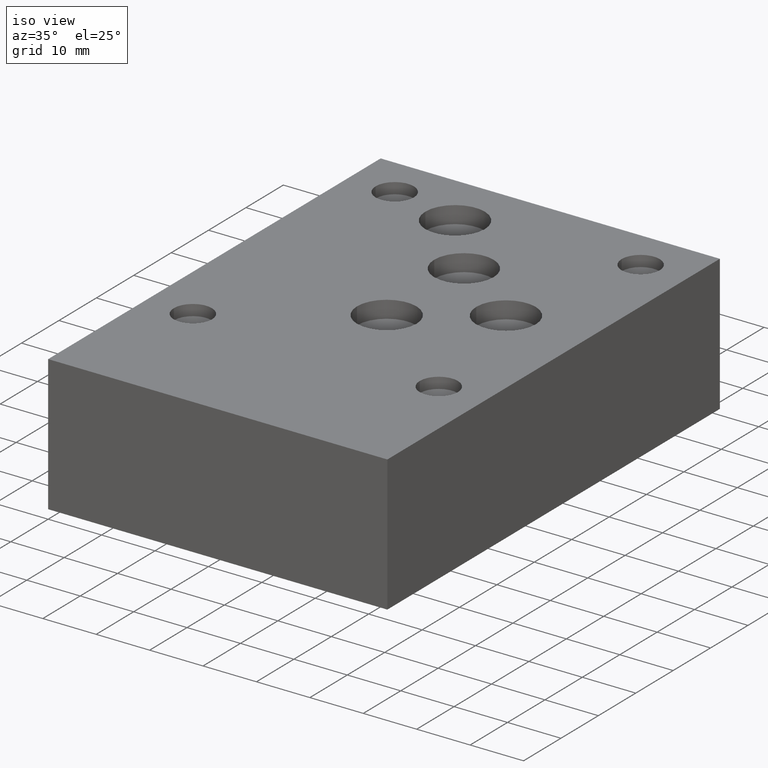
[diagram: clean part render]
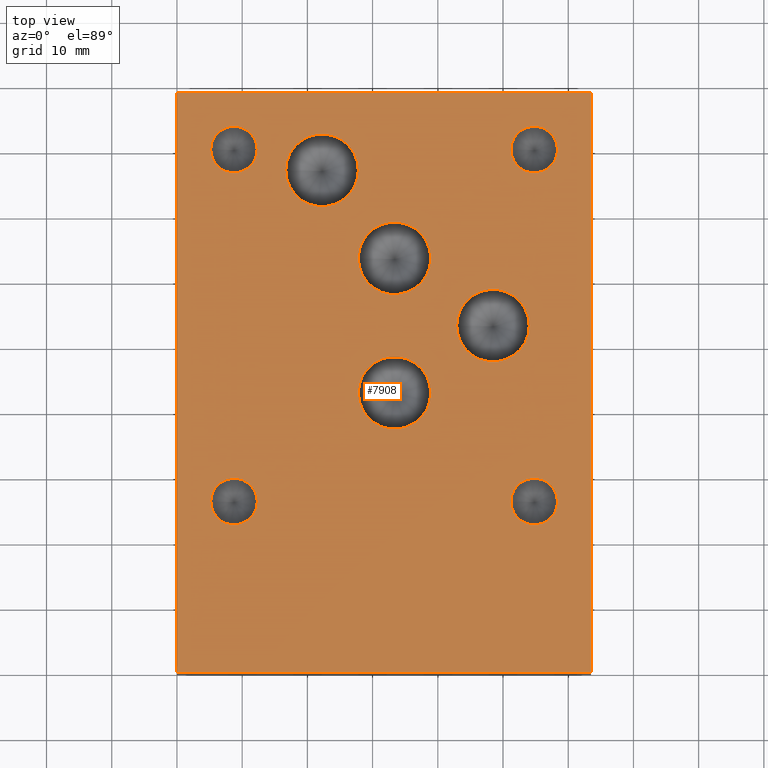
[diagram: tour spotlight — one face highlighted and labeled with its STEP entity id]
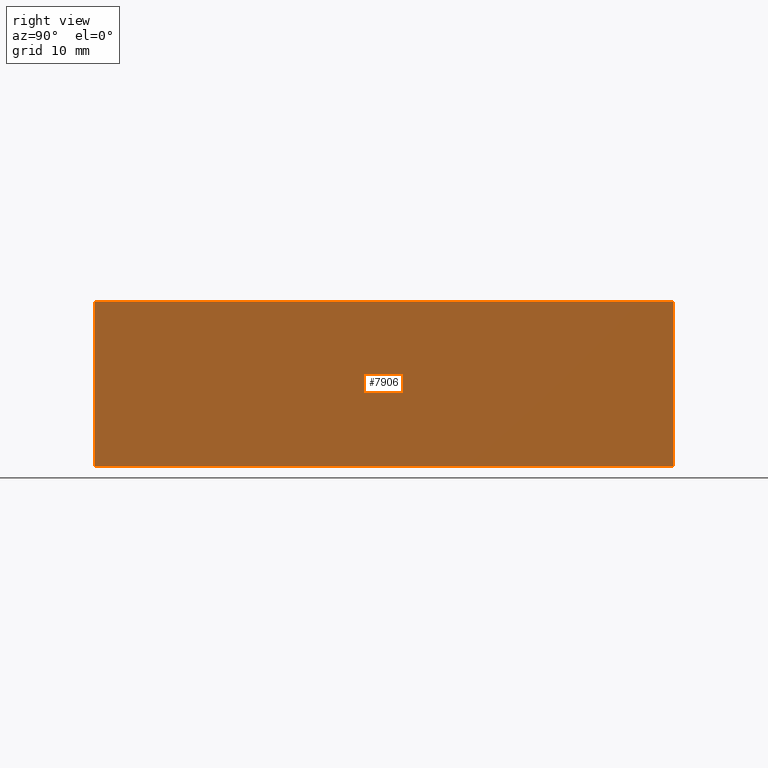
[diagram: tour spotlight — one face highlighted and labeled with its STEP entity id]
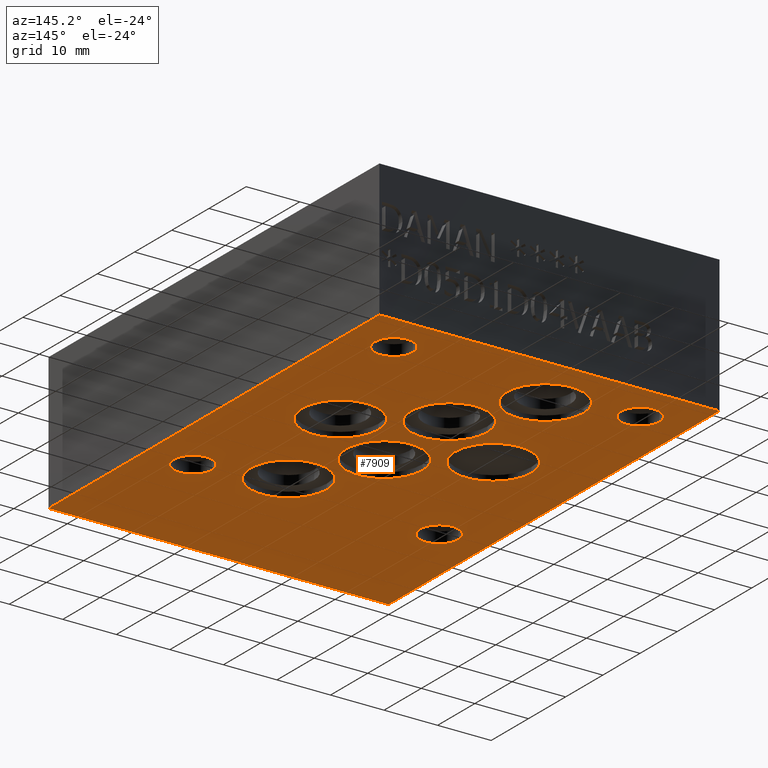
[diagram: tour spotlight — one face highlighted and labeled with its STEP entity id]
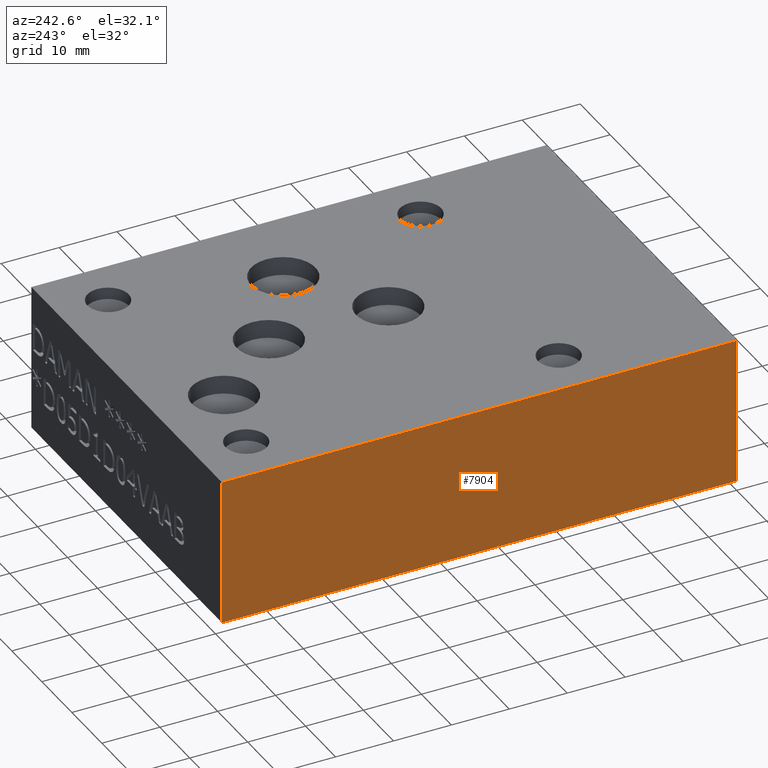
[diagram: tour spotlight — one face highlighted and labeled with its STEP entity id]
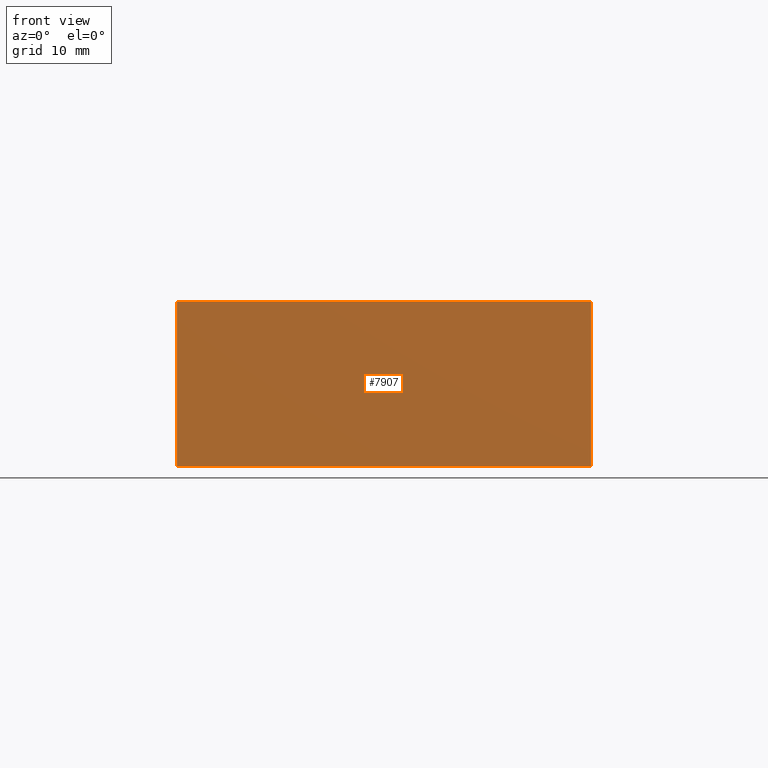
[diagram: tour spotlight — one face highlighted and labeled with its STEP entity id]
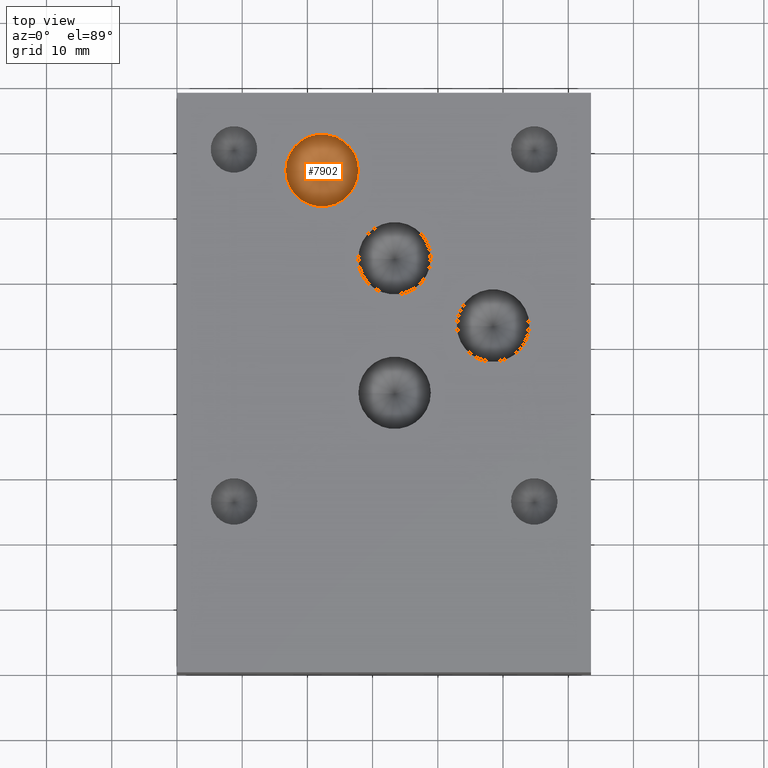
[diagram: tour spotlight — one face highlighted and labeled with its STEP entity id]
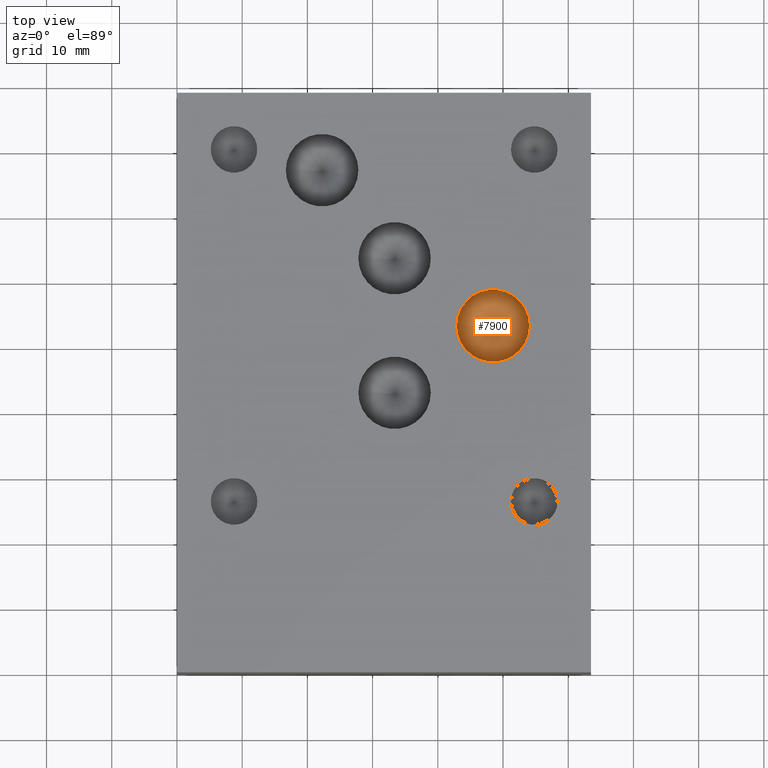
[diagram: tour spotlight — one face highlighted and labeled with its STEP entity id]
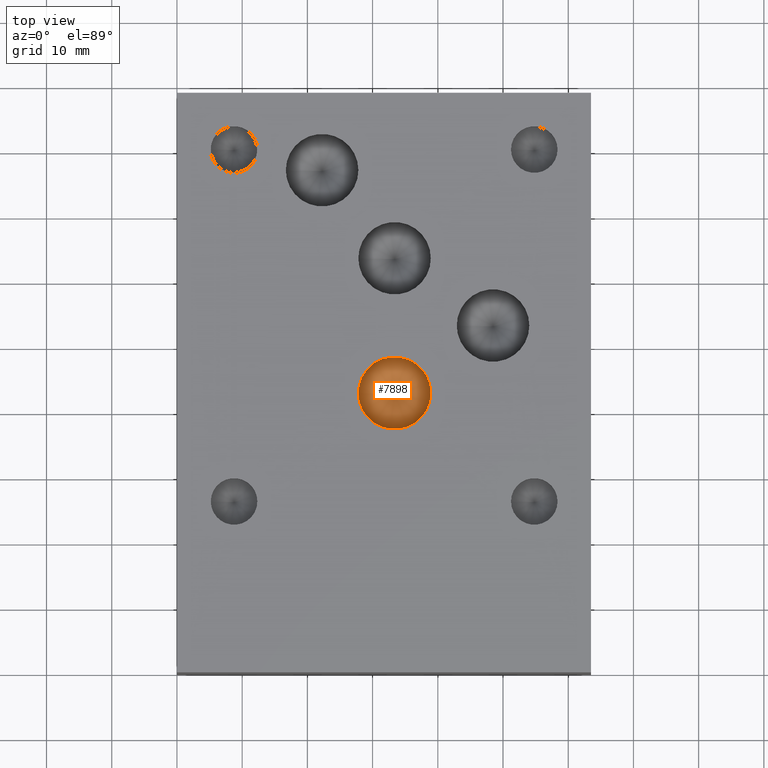
[diagram: tour spotlight — one face highlighted and labeled with its STEP entity id]
A machine part: a face-by-face anatomy tour. The part has 398 B-rep faces; the first image is the clean iso view, then the 8 largest visible faces are spotlighted one at a time (largest first), each with its STEP entity span.

Face 1 — top view, entity #7908. In plain terms, the highlighted planar face has unit normal (0, 0, 1).
Definition (entity closure, byte-faithful):
#88=CIRCLE('',#8275,3.5687);
#89=CIRCLE('',#8276,3.5687);
#92=CIRCLE('',#8281,3.5687);
#93=CIRCLE('',#8282,3.5687);
#96=CIRCLE('',#8287,3.5687);
#97=CIRCLE('',#8288,3.5687);
#100=CIRCLE('',#8293,3.5687);
#101=CIRCLE('',#8294,3.5687);
#104=CIRCLE('',#8299,5.55625);
#105=CIRCLE('',#8300,5.55625);
#108=CIRCLE('',#8305,5.55625);
#109=CIRCLE('',#8306,5.55625);
#112=CIRCLE('',#8311,5.5626);
#113=CIRCLE('',#8312,5.5626);
#116=CIRCLE('',#8317,5.5626);
#117=CIRCLE('',#8318,5.5626);
#432=FACE_BOUND('',#1284,.T.);
#433=FACE_BOUND('',#1285,.T.);
#434=FACE_BOUND('',#1286,.T.);
#435=FACE_BOUND('',#1287,.T.);
#436=FACE_BOUND('',#1288,.T.);
#437=FACE_BOUND('',#1289,.T.);
#438=FACE_BOUND('',#1290,.T.);
#439=FACE_BOUND('',#1291,.T.);
#846=FACE_OUTER_BOUND('',#1283,.T.);
#1283=EDGE_LOOP('',(#6860,#6861,#6862,#6863));
#1284=EDGE_LOOP('',(#6864,#6865));
#1285=EDGE_LOOP('',(#6866,#6867));
#1286=EDGE_LOOP('',(#6868,#6869));
#1287=EDGE_LOOP('',(#6870,#6871));
#1288=EDGE_LOOP('',(#6872,#6873));
#1289=EDGE_LOOP('',(#6874,#6875));
#1290=EDGE_LOOP('',(#6876,#6877));
#1291=EDGE_LOOP('',(#6878,#6879));
#1696=LINE('',#12043,#2516);
#2117=LINE('',#13238,#2937);
#2119=LINE('',#13244,#2939);
#2122=LINE('',#13248,#2942);
#2516=VECTOR('',#8956,10.);
#2937=VECTOR('',#9933,10.);
#2939=VECTOR('',#9939,10.);
#2942=VECTOR('',#9944,10.);
#3307=VERTEX_POINT('',#12040);
#3308=VERTEX_POINT('',#12042);
#3638=VERTEX_POINT('',#13137);
#3639=VERTEX_POINT('',#13138);
#3643=VERTEX_POINT('',#13150);
#3644=VERTEX_POINT('',#13151);
#3648=VERTEX_POINT('',#13163);
#3649=VERTEX_POINT('',#13164);
#3653=VERTEX_POINT('',#13176);
#3654=VERTEX_POINT('',#13177);
#3658=VERTEX_POINT('',#13189);
#3659=VERTEX_POINT('',#13190);
#3663=VERTEX_POINT('',#13202);
#3664=VERTEX_POINT('',#13203);
#3668=VERTEX_POINT('',#13215);
#3669=VERTEX_POINT('',#13216);
#3673=VERTEX_POINT('',#13228);
#3674=VERTEX_POINT('',#13229);
#3676=VERTEX_POINT('',#13236);
#3678=VERTEX_POINT('',#13243);
#4224=EDGE_CURVE('',#3308,#3307,#1696,.T.);
#4701=EDGE_CURVE('',#3638,#3639,#88,.T.);
#4702=EDGE_CURVE('',#3639,#3638,#89,.T.);
#4707=EDGE_CURVE('',#3643,#3644,#92,.T.);
#4708=EDGE_CURVE('',#3644,#3643,#93,.T.);
#4713=EDGE_CURVE('',#3648,#3649,#96,.T.);
#4714=EDGE_CURVE('',#3649,#3648,#97,.T.);
#4719=EDGE_CURVE('',#3653,#3654,#100,.T.);
#4720=EDGE_CURVE('',#3654,#3653,#101,.T.);
#4725=EDGE_CURVE('',#3658,#3659,#104,.T.);
#4726=EDGE_CURVE('',#3659,#3658,#105,.T.);
#4731=EDGE_CURVE('',#3663,#3664,#108,.T.);
#4732=EDGE_CURVE('',#3664,#3663,#109,.T.);
#4737=EDGE_CURVE('',#3668,#3669,#112,.T.);
#4738=EDGE_CURVE('',#3669,#3668,#113,.T.);
#4743=EDGE_CURVE('',#3673,#3674,#116,.T.);
#4744=EDGE_CURVE('',#3674,#3673,#117,.T.);
#4748=EDGE_CURVE('',#3307,#3676,#2117,.T.);
#4750=EDGE_CURVE('',#3678,#3308,#2119,.T.);
#4753=EDGE_CURVE('',#3676,#3678,#2122,.T.);
#6860=ORIENTED_EDGE('',*,*,#4753,.T.);
#6861=ORIENTED_EDGE('',*,*,#4750,.T.);
#6862=ORIENTED_EDGE('',*,*,#4224,.T.);
#6863=ORIENTED_EDGE('',*,*,#4748,.T.);
#6864=ORIENTED_EDGE('',*,*,#4701,.T.);
#6865=ORIENTED_EDGE('',*,*,#4702,.T.);
#6866=ORIENTED_EDGE('',*,*,#4707,.T.);
#6867=ORIENTED_EDGE('',*,*,#4708,.T.);
#6868=ORIENTED_EDGE('',*,*,#4713,.T.);
#6869=ORIENTED_EDGE('',*,*,#4714,.T.);
#6870=ORIENTED_EDGE('',*,*,#4719,.T.);
#6871=ORIENTED_EDGE('',*,*,#4720,.T.);
#6872=ORIENTED_EDGE('',*,*,#4725,.T.);
#6873=ORIENTED_EDGE('',*,*,#4726,.T.);
#6874=ORIENTED_EDGE('',*,*,#4731,.T.);
#6875=ORIENTED_EDGE('',*,*,#4732,.T.);
#6876=ORIENTED_EDGE('',*,*,#4737,.T.);
#6877=ORIENTED_EDGE('',*,*,#4738,.T.);
#6878=ORIENTED_EDGE('',*,*,#4743,.T.);
#6879=ORIENTED_EDGE('',*,*,#4744,.T.);
#7176=PLANE('',#8323);
#7908=ADVANCED_FACE('',(#846,#432,#433,#434,#435,#436,#437,#438,#439),#7176,
 .T.);
#8275=AXIS2_PLACEMENT_3D('',#13139,#9826,#9827);
#8276=AXIS2_PLACEMENT_3D('',#13140,#9828,#9829);
#8281=AXIS2_PLACEMENT_3D('',#13152,#9840,#9841);
#8282=AXIS2_PLACEMENT_3D('',#13153,#9842,#9843);
#8287=AXIS2_PLACEMENT_3D('',#13165,#9854,#9855);
#8288=AXIS2_PLACEMENT_3D('',#13166,#9856,#9857);
#8293=AXIS2_PLACEMENT_3D('',#13178,#9868,#9869);
#8294=AXIS2_PLACEMENT_3D('',#13179,#9870,#9871);
#8299=AXIS2_PLACEMENT_3D('',#13191,#9882,#9883);
#8300=AXIS2_PLACEMENT_3D('',#13192,#9884,#9885);
#8305=AXIS2_PLACEMENT_3D('',#13204,#9896,#9897);
#8306=AXIS2_PLACEMENT_3D('',#13205,#9898,#9899);
#8311=AXIS2_PLACEMENT_3D('',#13217,#9910,#9911);
#8312=AXIS2_PLACEMENT_3D('',#13218,#9912,#9913);
#8317=AXIS2_PLACEMENT_3D('',#13230,#9924,#9925);
#8318=AXIS2_PLACEMENT_3D('',#13231,#9926,#9927);
#8323=AXIS2_PLACEMENT_3D('',#13249,#9945,#9946);
#8956=DIRECTION('',(-1.,0.,0.));
#9826=DIRECTION('center_axis',(0.,0.,-1.));
#9827=DIRECTION('ref_axis',(1.,0.,0.));
#9828=DIRECTION('center_axis',(0.,0.,-1.));
#9829=DIRECTION('ref_axis',(1.,0.,0.));
#9840=DIRECTION('center_axis',(0.,0.,-1.));
#9841=DIRECTION('ref_axis',(1.,0.,0.));
#9842=DIRECTION('center_axis',(0.,0.,-1.));
#9843=DIRECTION('ref_axis',(1.,0.,0.));
#9854=DIRECTION('center_axis',(0.,0.,-1.));
#9855=DIRECTION('ref_axis',(1.,0.,0.));
#9856=DIRECTION('center_axis',(0.,0.,-1.));
#9857=DIRECTION('ref_axis',(1.,0.,0.));
#9868=DIRECTION('center_axis',(0.,0.,-1.));
#9869=DIRECTION('ref_axis',(1.,0.,0.));
#9870=DIRECTION('center_axis',(0.,0.,-1.));
#9871=DIRECTION('ref_axis',(1.,0.,0.));
#9882=DIRECTION('center_axis',(0.,0.,-1.));
#9883=DIRECTION('ref_axis',(1.,0.,0.));
#9884=DIRECTION('center_axis',(0.,0.,-1.));
#9885=DIRECTION('ref_axis',(1.,0.,0.));
#9896=DIRECTION('center_axis',(0.,0.,-1.));
#9897=DIRECTION('ref_axis',(1.,0.,0.));
#9898=DIRECTION('center_axis',(0.,0.,-1.));
#9899=DIRECTION('ref_axis',(1.,0.,0.));
#9910=DIRECTION('center_axis',(0.,0.,-1.));
#9911=DIRECTION('ref_axis',(1.,0.,0.));
#9912=DIRECTION('center_axis',(0.,0.,-1.));
#9913=DIRECTION('ref_axis',(1.,0.,0.));
#9924=DIRECTION('center_axis',(0.,0.,-1.));
#9925=DIRECTION('ref_axis',(1.,0.,0.));
#9926=DIRECTION('center_axis',(0.,0.,-1.));
#9927=DIRECTION('ref_axis',(1.,0.,0.));
#9933=DIRECTION('',(0.,-1.,0.));
#9939=DIRECTION('',(0.,1.,0.));
#9944=DIRECTION('',(1.,0.,0.));
#9945=DIRECTION('center_axis',(0.,0.,1.));
#9946=DIRECTION('ref_axis',(1.,0.,0.));
#12040=CARTESIAN_POINT('',(0.,88.9,25.4));
#12042=CARTESIAN_POINT('',(63.5,88.9,25.4));
#12043=CARTESIAN_POINT('',(63.5,88.9,25.4));
#13137=CARTESIAN_POINT('',(12.3063,80.1878,25.4));
#13138=CARTESIAN_POINT('',(5.1689,80.1878,25.4));
#13139=CARTESIAN_POINT('Origin',(8.7376,80.1878,25.4));
#13140=CARTESIAN_POINT('Origin',(8.7376,80.1878,25.4));
#13150=CARTESIAN_POINT('',(12.319,26.2001,25.4));
#13151=CARTESIAN_POINT('',(5.1816,26.2001,25.4));
#13152=CARTESIAN_POINT('Origin',(8.7503,26.2001,25.4));
#13153=CARTESIAN_POINT('Origin',(8.7503,26.2001,25.4));
#13163=CARTESIAN_POINT('',(58.3565,26.2001,25.4));
#13164=CARTESIAN_POINT('',(51.2191,26.2001,25.4));
#13165=CARTESIAN_POINT('Origin',(54.7878,26.2001,25.4));
#13166=CARTESIAN_POINT('Origin',(54.7878,26.2001,25.4));
#13176=CARTESIAN_POINT('',(58.3565,80.1751,25.4));
#13177=CARTESIAN_POINT('',(51.2191,80.1751,25.4));
#13178=CARTESIAN_POINT('Origin',(54.7878,80.1751,25.4));
#13179=CARTESIAN_POINT('Origin',(54.7878,80.1751,25.4));
#13189=CARTESIAN_POINT('',(38.91915,63.50508,25.4));
#13190=CARTESIAN_POINT('',(27.80665,63.50508,25.4));
#13191=CARTESIAN_POINT('Origin',(33.3629,63.50508,25.4));
#13192=CARTESIAN_POINT('Origin',(33.3629,63.50508,25.4));
#13202=CARTESIAN_POINT('',(38.92423,42.87012,25.4));
#13203=CARTESIAN_POINT('',(27.81173,42.87012,25.4));
#13204=CARTESIAN_POINT('Origin',(33.36798,42.87012,25.4));
#13205=CARTESIAN_POINT('Origin',(33.36798,42.87012,25.4));
#13215=CARTESIAN_POINT('',(54.0258,53.1876,25.4));
#13216=CARTESIAN_POINT('',(42.9006,53.1876,25.4));
#13217=CARTESIAN_POINT('Origin',(48.4632,53.1876,25.4));
#13218=CARTESIAN_POINT('Origin',(48.4632,53.1876,25.4));
#13228=CARTESIAN_POINT('',(27.813,77.0128,25.4));
#13229=CARTESIAN_POINT('',(16.6878,77.0128,25.4));
#13230=CARTESIAN_POINT('Origin',(22.2504,77.0128,25.4));
#13231=CARTESIAN_POINT('Origin',(22.2504,77.0128,25.4));
#13236=CARTESIAN_POINT('',(0.,0.,25.4));
#13238=CARTESIAN_POINT('',(0.,88.9,25.4));
#13243=CARTESIAN_POINT('',(63.5,0.,25.4));
#13244=CARTESIAN_POINT('',(63.5,0.,25.4));
#13248=CARTESIAN_POINT('',(0.,0.,25.4));
#13249=CARTESIAN_POINT('Origin',(31.75,44.45,25.4));

Face 2 — right view, entity #7906. In plain terms, the highlighted planar face has unit normal (1, 0, 0).
Definition (entity closure, byte-faithful):
#844=FACE_OUTER_BOUND('',#1281,.T.);
#1281=EDGE_LOOP('',(#6852,#6853,#6854,#6855));
#1697=LINE('',#12044,#2517);
#2118=LINE('',#13242,#2938);
#2119=LINE('',#13244,#2939);
#2120=LINE('',#13245,#2940);
#2517=VECTOR('',#8957,10.);
#2938=VECTOR('',#9938,10.);
#2939=VECTOR('',#9939,10.);
#2940=VECTOR('',#9940,10.);
#3305=VERTEX_POINT('',#12037);
#3308=VERTEX_POINT('',#12042);
#3677=VERTEX_POINT('',#13241);
#3678=VERTEX_POINT('',#13243);
#4225=EDGE_CURVE('',#3305,#3308,#1697,.T.);
#4749=EDGE_CURVE('',#3677,#3305,#2118,.T.);
#4750=EDGE_CURVE('',#3678,#3308,#2119,.T.);
#4751=EDGE_CURVE('',#3677,#3678,#2120,.T.);
#6852=ORIENTED_EDGE('',*,*,#4749,.T.);
#6853=ORIENTED_EDGE('',*,*,#4225,.T.);
#6854=ORIENTED_EDGE('',*,*,#4750,.F.);
#6855=ORIENTED_EDGE('',*,*,#4751,.F.);
#7174=PLANE('',#8321);
#7906=ADVANCED_FACE('',(#844),#7174,.T.);
#8321=AXIS2_PLACEMENT_3D('',#13240,#9936,#9937);
#8957=DIRECTION('',(0.,0.,1.));
#9936=DIRECTION('center_axis',(1.,0.,0.));
#9937=DIRECTION('ref_axis',(0.,1.,0.));
#9938=DIRECTION('',(0.,1.,0.));
#9939=DIRECTION('',(0.,1.,0.));
#9940=DIRECTION('',(0.,0.,1.));
#12037=CARTESIAN_POINT('',(63.5,88.9,0.));
#12042=CARTESIAN_POINT('',(63.5,88.9,25.4));
#12044=CARTESIAN_POINT('',(63.5,88.9,0.));
#13240=CARTESIAN_POINT('Origin',(63.5,0.,0.));
#13241=CARTESIAN_POINT('',(63.5,0.,0.));
#13242=CARTESIAN_POINT('',(63.5,0.,0.));
#13243=CARTESIAN_POINT('',(63.5,0.,25.4));
#13244=CARTESIAN_POINT('',(63.5,0.,25.4));
#13245=CARTESIAN_POINT('',(63.5,0.,0.));

Face 3 — auxiliary view, entity #7909. In plain terms, the highlighted planar face has unit normal (0, 0, 1).
Definition (entity closure, byte-faithful):
#31=CIRCLE('',#8187,7.1374);
#32=CIRCLE('',#8188,7.1374);
#36=CIRCLE('',#8194,7.1374);
#37=CIRCLE('',#8195,7.1374);
#41=CIRCLE('',#8201,7.1374);
#42=CIRCLE('',#8202,7.1374);
#46=CIRCLE('',#8208,7.1374);
#47=CIRCLE('',#8209,7.1374);
#51=CIRCLE('',#8215,7.1374);
#52=CIRCLE('',#8216,7.1374);
#55=CIRCLE('',#8221,7.1374);
#56=CIRCLE('',#8222,7.1374);
#72=CIRCLE('',#8251,3.5687);
#73=CIRCLE('',#8252,3.5687);
#76=CIRCLE('',#8257,3.5687);
#77=CIRCLE('',#8258,3.5687);
#80=CIRCLE('',#8263,3.5687);
#81=CIRCLE('',#8264,3.5687);
#84=CIRCLE('',#8269,3.5687);
#85=CIRCLE('',#8270,3.5687);
#440=FACE_BOUND('',#1293,.T.);
#441=FACE_BOUND('',#1294,.T.);
#442=FACE_BOUND('',#1295,.T.);
#443=FACE_BOUND('',#1296,.T.);
#444=FACE_BOUND('',#1297,.T.);
#445=FACE_BOUND('',#1298,.T.);
#446=FACE_BOUND('',#1299,.T.);
#447=FACE_BOUND('',#1300,.T.);
#448=FACE_BOUND('',#1301,.T.);
#449=FACE_BOUND('',#1302,.T.);
#847=FACE_OUTER_BOUND('',#1292,.T.);
#1292=EDGE_LOOP('',(#6880,#6881,#6882,#6883));
#1293=EDGE_LOOP('',(#6884,#6885));
#1294=EDGE_LOOP('',(#6886,#6887));
#1295=EDGE_LOOP('',(#6888,#6889));
#1296=EDGE_LOOP('',(#6890,#6891));
#1297=EDGE_LOOP('',(#6892,#6893));
#1298=EDGE_LOOP('',(#6894,#6895));
#1299=EDGE_LOOP('',(#6896,#6897));
#1300=EDGE_LOOP('',(#6898,#6899));
#1301=EDGE_LOOP('',(#6900,#6901));
#1302=EDGE_LOOP('',(#6902,#6903));
#1694=LINE('',#12039,#2514);
#2115=LINE('',#13235,#2935);
#2118=LINE('',#13242,#2938);
#2121=LINE('',#13247,#2941);
#2514=VECTOR('',#8954,10.);
#2935=VECTOR('',#9931,10.);
#2938=VECTOR('',#9938,10.);
#2941=VECTOR('',#9943,10.);
#3305=VERTEX_POINT('',#12037);
#3306=VERTEX_POINT('',#12038);
#3571=VERTEX_POINT('',#12957);
#3572=VERTEX_POINT('',#12958);
#3576=VERTEX_POINT('',#12970);
#3577=VERTEX_POINT('',#12971);
#3581=VERTEX_POINT('',#12983);
#3582=VERTEX_POINT('',#12984);
#3586=VERTEX_POINT('',#12996);
#3587=VERTEX_POINT('',#12997);
#3591=VERTEX_POINT('',#13009);
#3592=VERTEX_POINT('',#13010);
#3595=VERTEX_POINT('',#13020);
#3596=VERTEX_POINT('',#13021);
#3618=VERTEX_POINT('',#13085);
#3619=VERTEX_POINT('',#13086);
#3623=VERTEX_POINT('',#13098);
#3624=VERTEX_POINT('',#13099);
#3628=VERTEX_POINT('',#13111);
#3629=VERTEX_POINT('',#13112);
#3633=VERTEX_POINT('',#13124);
#3634=VERTEX_POINT('',#13125);
#3675=VERTEX_POINT('',#13234);
#3677=VERTEX_POINT('',#13241);
#4222=EDGE_CURVE('',#3305,#3306,#1694,.T.);
#4619=EDGE_CURVE('',#3571,#3572,#31,.T.);
#4620=EDGE_CURVE('',#3572,#3571,#32,.T.);
#4625=EDGE_CURVE('',#3576,#3577,#36,.T.);
#4626=EDGE_CURVE('',#3577,#3576,#37,.T.);
#4631=EDGE_CURVE('',#3581,#3582,#41,.T.);
#4632=EDGE_CURVE('',#3582,#3581,#42,.T.);
#4637=EDGE_CURVE('',#3586,#3587,#46,.T.);
#4638=EDGE_CURVE('',#3587,#3586,#47,.T.);
#4643=EDGE_CURVE('',#3591,#3592,#51,.T.);
#4644=EDGE_CURVE('',#3592,#3591,#52,.T.);
#4648=EDGE_CURVE('',#3595,#3596,#55,.T.);
#4649=EDGE_CURVE('',#3596,#3595,#56,.T.);
#4677=EDGE_CURVE('',#3618,#3619,#72,.T.);
#4678=EDGE_CURVE('',#3619,#3618,#73,.T.);
#4683=EDGE_CURVE('',#3623,#3624,#76,.T.);
#4684=EDGE_CURVE('',#3624,#3623,#77,.T.);
#4689=EDGE_CURVE('',#3628,#3629,#80,.T.);
#4690=EDGE_CURVE('',#3629,#3628,#81,.T.);
#4695=EDGE_CURVE('',#3633,#3634,#84,.T.);
#4696=EDGE_CURVE('',#3634,#3633,#85,.T.);
#4746=EDGE_CURVE('',#3306,#3675,#2115,.T.);
#4749=EDGE_CURVE('',#3677,#3305,#2118,.T.);
#4752=EDGE_CURVE('',#3675,#3677,#2121,.T.);
#6880=ORIENTED_EDGE('',*,*,#4752,.F.);
#6881=ORIENTED_EDGE('',*,*,#4746,.F.);
#6882=ORIENTED_EDGE('',*,*,#4222,.F.);
#6883=ORIENTED_EDGE('',*,*,#4749,.F.);
#6884=ORIENTED_EDGE('',*,*,#4619,.T.);
#6885=ORIENTED_EDGE('',*,*,#4620,.T.);
#6886=ORIENTED_EDGE('',*,*,#4625,.T.);
#6887=ORIENTED_EDGE('',*,*,#4626,.T.);
#6888=ORIENTED_EDGE('',*,*,#4631,.T.);
#6889=ORIENTED_EDGE('',*,*,#4632,.T.);
#6890=ORIENTED_EDGE('',*,*,#4637,.T.);
#6891=ORIENTED_EDGE('',*,*,#4638,.T.);
#6892=ORIENTED_EDGE('',*,*,#4643,.T.);
#6893=ORIENTED_EDGE('',*,*,#4644,.T.);
#6894=ORIENTED_EDGE('',*,*,#4648,.T.);
#6895=ORIENTED_EDGE('',*,*,#4649,.T.);
#6896=ORIENTED_EDGE('',*,*,#4677,.T.);
#6897=ORIENTED_EDGE('',*,*,#4678,.T.);
#6898=ORIENTED_EDGE('',*,*,#4683,.T.);
#6899=ORIENTED_EDGE('',*,*,#4684,.T.);
#6900=ORIENTED_EDGE('',*,*,#4689,.T.);
#6901=ORIENTED_EDGE('',*,*,#4690,.T.);
#6902=ORIENTED_EDGE('',*,*,#4695,.T.);
#6903=ORIENTED_EDGE('',*,*,#4696,.T.);
#7177=PLANE('',#8324);
#7909=ADVANCED_FACE('',(#847,#440,#441,#442,#443,#444,#445,#446,#447,#448,
#449),#7177,.F.);
#8187=AXIS2_PLACEMENT_3D('',#12959,#9625,#9626);
#8188=AXIS2_PLACEMENT_3D('',#12960,#9627,#9628);
#8194=AXIS2_PLACEMENT_3D('',#12972,#9640,#9641);
#8195=AXIS2_PLACEMENT_3D('',#12973,#9642,#9643);
#8201=AXIS2_PLACEMENT_3D('',#12985,#9655,#9656);
#8202=AXIS2_PLACEMENT_3D('',#12986,#9657,#9658);
#8208=AXIS2_PLACEMENT_3D('',#12998,#9670,#9671);
#8209=AXIS2_PLACEMENT_3D('',#12999,#9672,#9673);
#8215=AXIS2_PLACEMENT_3D('',#13011,#9685,#9686);
#8216=AXIS2_PLACEMENT_3D('',#13012,#9687,#9688);
#8221=AXIS2_PLACEMENT_3D('',#13022,#9698,#9699);
#8222=AXIS2_PLACEMENT_3D('',#13023,#9700,#9701);
#8251=AXIS2_PLACEMENT_3D('',#13087,#9770,#9771);
#8252=AXIS2_PLACEMENT_3D('',#13088,#9772,#9773);
#8257=AXIS2_PLACEMENT_3D('',#13100,#9784,#9785);
#8258=AXIS2_PLACEMENT_3D('',#13101,#9786,#9787);
#8263=AXIS2_PLACEMENT_3D('',#13113,#9798,#9799);
#8264=AXIS2_PLACEMENT_3D('',#13114,#9800,#9801);
#8269=AXIS2_PLACEMENT_3D('',#13126,#9812,#9813);
#8270=AXIS2_PLACEMENT_3D('',#13127,#9814,#9815);
#8324=AXIS2_PLACEMENT_3D('',#13250,#9947,#9948);
#8954=DIRECTION('',(-1.,0.,0.));
#9625=DIRECTION('center_axis',(0.,0.,1.));
#9626=DIRECTION('ref_axis',(1.,0.,0.));
#9627=DIRECTION('center_axis',(0.,0.,1.));
#9628=DIRECTION('ref_axis',(1.,0.,0.));
#9640=DIRECTION('center_axis',(0.,0.,1.));
#9641=DIRECTION('ref_axis',(1.,0.,0.));
#9642=DIRECTION('center_axis',(0.,0.,1.));
#9643=DIRECTION('ref_axis',(1.,0.,0.));
#9655=DIRECTION('center_axis',(0.,0.,1.));
#9656=DIRECTION('ref_axis',(1.,0.,0.));
#9657=DIRECTION('center_axis',(0.,0.,1.));
#9658=DIRECTION('ref_axis',(1.,0.,0.));
#9670=DIRECTION('center_axis',(0.,0.,1.));
#9671=DIRECTION('ref_axis',(1.,0.,0.));
#9672=DIRECTION('center_axis',(0.,0.,1.));
#9673=DIRECTION('ref_axis',(1.,0.,0.));
#9685=DIRECTION('center_axis',(0.,0.,1.));
#9686=DIRECTION('ref_axis',(1.,0.,0.));
#9687=DIRECTION('center_axis',(0.,0.,1.));
#9688=DIRECTION('ref_axis',(1.,0.,0.));
#9698=DIRECTION('center_axis',(0.,0.,1.));
#9699=DIRECTION('ref_axis',(1.,0.,0.));
#9700=DIRECTION('center_axis',(0.,0.,1.));
#9701=DIRECTION('ref_axis',(1.,0.,0.));
#9770=DIRECTION('center_axis',(0.,0.,1.));
#9771=DIRECTION('ref_axis',(1.,0.,0.));
#9772=DIRECTION('center_axis',(0.,0.,1.));
#9773=DIRECTION('ref_axis',(1.,0.,0.));
#9784=DIRECTION('center_axis',(0.,0.,1.));
#9785=DIRECTION('ref_axis',(1.,0.,0.));
#9786=DIRECTION('center_axis',(0.,0.,1.));
#9787=DIRECTION('ref_axis',(1.,0.,0.));
#9798=DIRECTION('center_axis',(0.,0.,1.));
#9799=DIRECTION('ref_axis',(1.,0.,0.));
#9800=DIRECTION('center_axis',(0.,0.,1.));
#9801=DIRECTION('ref_axis',(1.,0.,0.));
#9812=DIRECTION('center_axis',(0.,0.,1.));
#9813=DIRECTION('ref_axis',(1.,0.,0.));
#9814=DIRECTION('center_axis',(0.,0.,1.));
#9815=DIRECTION('ref_axis',(1.,0.,0.));
#9931=DIRECTION('',(0.,-1.,0.));
#9938=DIRECTION('',(0.,1.,0.));
#9943=DIRECTION('',(1.,0.,0.));
#9947=DIRECTION('center_axis',(0.,0.,1.));
#9948=DIRECTION('ref_axis',(1.,0.,0.));
#12037=CARTESIAN_POINT('',(63.5,88.9,0.));
#12038=CARTESIAN_POINT('',(0.,88.9,0.));
#12039=CARTESIAN_POINT('',(63.5,88.9,0.));
#12957=CARTESIAN_POINT('',(38.862,44.4754,0.));
#12958=CARTESIAN_POINT('',(24.5872,44.4754,0.));
#12959=CARTESIAN_POINT('Origin',(31.7246,44.4754,0.));
#12960=CARTESIAN_POINT('Origin',(31.7246,44.4754,0.));
#12970=CARTESIAN_POINT('',(53.1368,53.1876,0.));
#12971=CARTESIAN_POINT('',(38.862,53.1876,0.));
#12972=CARTESIAN_POINT('Origin',(45.9994,53.1876,0.));
#12973=CARTESIAN_POINT('Origin',(45.9994,53.1876,0.));
#12983=CARTESIAN_POINT('',(30.8864,76.2254,0.));
#12984=CARTESIAN_POINT('',(16.6116,76.2254,0.));
#12985=CARTESIAN_POINT('Origin',(23.749,76.2254,0.));
#12986=CARTESIAN_POINT('Origin',(23.749,76.2254,0.));
#12996=CARTESIAN_POINT('',(38.862,61.9252,0.));
#12997=CARTESIAN_POINT('',(24.5872,61.9252,0.));
#12998=CARTESIAN_POINT('Origin',(31.7246,61.9252,0.));
#12999=CARTESIAN_POINT('Origin',(31.7246,61.9252,0.));
#13009=CARTESIAN_POINT('',(24.5618,53.1876,0.));
#13010=CARTESIAN_POINT('',(10.287,53.1876,0.));
#13011=CARTESIAN_POINT('Origin',(17.4244,53.1876,0.));
#13012=CARTESIAN_POINT('Origin',(17.4244,53.1876,0.));
#13020=CARTESIAN_POINT('',(46.7614,30.1752,0.));
#13021=CARTESIAN_POINT('',(32.4866,30.1752,0.));
#13022=CARTESIAN_POINT('Origin',(39.624,30.1752,0.));
#13023=CARTESIAN_POINT('Origin',(39.624,30.1752,0.));
#13085=CARTESIAN_POINT('',(12.3063,80.1878,0.));
#13086=CARTESIAN_POINT('',(5.1689,80.1878,0.));
#13087=CARTESIAN_POINT('Origin',(8.7376,80.1878,0.));
#13088=CARTESIAN_POINT('Origin',(8.7376,80.1878,0.));
#13098=CARTESIAN_POINT('',(58.3057,80.1878,0.));
#13099=CARTESIAN_POINT('',(51.1683,80.1878,0.));
#13100=CARTESIAN_POINT('Origin',(54.737,80.1878,0.));
#13101=CARTESIAN_POINT('Origin',(54.737,80.1878,0.));
#13111=CARTESIAN_POINT('',(58.3057,26.1874,0.));
#13112=CARTESIAN_POINT('',(51.1683,26.1874,0.));
#13113=CARTESIAN_POINT('Origin',(54.737,26.1874,0.));
#13114=CARTESIAN_POINT('Origin',(54.737,26.1874,0.));
#13124=CARTESIAN_POINT('',(12.3063,26.1874,0.));
#13125=CARTESIAN_POINT('',(5.1689,26.1874,0.));
#13126=CARTESIAN_POINT('Origin',(8.7376,26.1874,0.));
#13127=CARTESIAN_POINT('Origin',(8.7376,26.1874,0.));
#13234=CARTESIAN_POINT('',(0.,0.,0.));
#13235=CARTESIAN_POINT('',(0.,88.9,0.));
#13241=CARTESIAN_POINT('',(63.5,0.,0.));
#13242=CARTESIAN_POINT('',(63.5,0.,0.));
#13247=CARTESIAN_POINT('',(0.,0.,0.));
#13250=CARTESIAN_POINT('Origin',(31.75,44.45,0.));

Face 4 — auxiliary view, entity #7904. In plain terms, the highlighted planar face has unit normal (-1, 0, 0).
Definition (entity closure, byte-faithful):
#842=FACE_OUTER_BOUND('',#1279,.T.);
#1279=EDGE_LOOP('',(#6845,#6846,#6847,#6848));
#1695=LINE('',#12041,#2515);
#2115=LINE('',#13235,#2935);
#2116=LINE('',#13237,#2936);
#2117=LINE('',#13238,#2937);
#2515=VECTOR('',#8955,10.);
#2935=VECTOR('',#9931,10.);
#2936=VECTOR('',#9932,10.);
#2937=VECTOR('',#9933,10.);
#3306=VERTEX_POINT('',#12038);
#3307=VERTEX_POINT('',#12040);
#3675=VERTEX_POINT('',#13234);
#3676=VERTEX_POINT('',#13236);
#4223=EDGE_CURVE('',#3306,#3307,#1695,.T.);
#4746=EDGE_CURVE('',#3306,#3675,#2115,.T.);
#4747=EDGE_CURVE('',#3675,#3676,#2116,.T.);
#4748=EDGE_CURVE('',#3307,#3676,#2117,.T.);
#6845=ORIENTED_EDGE('',*,*,#4746,.T.);
#6846=ORIENTED_EDGE('',*,*,#4747,.T.);
#6847=ORIENTED_EDGE('',*,*,#4748,.F.);
#6848=ORIENTED_EDGE('',*,*,#4223,.F.);
#7172=PLANE('',#8319);
#7904=ADVANCED_FACE('',(#842),#7172,.T.);
#8319=AXIS2_PLACEMENT_3D('',#13233,#9929,#9930);
#8955=DIRECTION('',(0.,0.,1.));
#9929=DIRECTION('center_axis',(-1.,0.,0.));
#9930=DIRECTION('ref_axis',(0.,-1.,0.));
#9931=DIRECTION('',(0.,-1.,0.));
#9932=DIRECTION('',(0.,0.,1.));
#9933=DIRECTION('',(0.,-1.,0.));
#12038=CARTESIAN_POINT('',(0.,88.9,0.));
#12040=CARTESIAN_POINT('',(0.,88.9,25.4));
#12041=CARTESIAN_POINT('',(0.,88.9,0.));
#13233=CARTESIAN_POINT('Origin',(0.,88.9,0.));
#13234=CARTESIAN_POINT('',(0.,0.,0.));
#13235=CARTESIAN_POINT('',(0.,88.9,0.));
#13236=CARTESIAN_POINT('',(0.,0.,25.4));
#13237=CARTESIAN_POINT('',(0.,0.,0.));
#13238=CARTESIAN_POINT('',(0.,88.9,25.4));

Face 5 — front view, entity #7907. In plain terms, the highlighted planar face has unit normal (0, -1, 0).
Definition (entity closure, byte-faithful):
#845=FACE_OUTER_BOUND('',#1282,.T.);
#1282=EDGE_LOOP('',(#6856,#6857,#6858,#6859));
#2116=LINE('',#13237,#2936);
#2120=LINE('',#13245,#2940);
#2121=LINE('',#13247,#2941);
#2122=LINE('',#13248,#2942);
#2936=VECTOR('',#9932,10.);
#2940=VECTOR('',#9940,10.);
#2941=VECTOR('',#9943,10.);
#2942=VECTOR('',#9944,10.);
#3675=VERTEX_POINT('',#13234);
#3676=VERTEX_POINT('',#13236);
#3677=VERTEX_POINT('',#13241);
#3678=VERTEX_POINT('',#13243);
#4747=EDGE_CURVE('',#3675,#3676,#2116,.T.);
#4751=EDGE_CURVE('',#3677,#3678,#2120,.T.);
#4752=EDGE_CURVE('',#3675,#3677,#2121,.T.);
#4753=EDGE_CURVE('',#3676,#3678,#2122,.T.);
#6856=ORIENTED_EDGE('',*,*,#4752,.T.);
#6857=ORIENTED_EDGE('',*,*,#4751,.T.);
#6858=ORIENTED_EDGE('',*,*,#4753,.F.);
#6859=ORIENTED_EDGE('',*,*,#4747,.F.);
#7175=PLANE('',#8322);
#7907=ADVANCED_FACE('',(#845),#7175,.T.);
#8322=AXIS2_PLACEMENT_3D('',#13246,#9941,#9942);
#9932=DIRECTION('',(0.,0.,1.));
#9940=DIRECTION('',(0.,0.,1.));
#9941=DIRECTION('center_axis',(0.,-1.,0.));
#9942=DIRECTION('ref_axis',(1.,0.,0.));
#9943=DIRECTION('',(1.,0.,0.));
#9944=DIRECTION('',(1.,0.,0.));
#13234=CARTESIAN_POINT('',(0.,0.,0.));
#13236=CARTESIAN_POINT('',(0.,0.,25.4));
#13237=CARTESIAN_POINT('',(0.,0.,0.));
#13241=CARTESIAN_POINT('',(63.5,0.,0.));
#13243=CARTESIAN_POINT('',(63.5,0.,25.4));
#13245=CARTESIAN_POINT('',(63.5,0.,0.));
#13246=CARTESIAN_POINT('Origin',(0.,0.,0.));
#13247=CARTESIAN_POINT('',(0.,0.,0.));
#13248=CARTESIAN_POINT('',(0.,0.,25.4));

Face 6 — top view, entity #7902. In plain terms, the highlighted conical surface has half-angle 60 deg.
Definition (entity closure, byte-faithful):
#30=CONICAL_SURFACE('',#8313,2.7813,1.0471975511966);
#114=CIRCLE('',#8314,5.5626);
#115=CIRCLE('',#8315,5.5626);
#840=FACE_OUTER_BOUND('',#1277,.T.);
#1277=EDGE_LOOP('',(#6835,#6836,#6837,#6838));
#2113=LINE('',#13225,#2933);
#2933=VECTOR('',#9919,2.7813);
#3670=VERTEX_POINT('',#13221);
#3671=VERTEX_POINT('',#13222);
#3672=VERTEX_POINT('',#13224);
#4740=EDGE_CURVE('',#3670,#3671,#114,.T.);
#4741=EDGE_CURVE('',#3671,#3672,#2113,.T.);
#4742=EDGE_CURVE('',#3671,#3670,#115,.T.);
#6835=ORIENTED_EDGE('',*,*,#4740,.T.);
#6836=ORIENTED_EDGE('',*,*,#4741,.T.);
#6837=ORIENTED_EDGE('',*,*,#4741,.F.);
#6838=ORIENTED_EDGE('',*,*,#4742,.T.);
#7902=ADVANCED_FACE('',(#840),#30,.F.);
#8313=AXIS2_PLACEMENT_3D('',#13220,#9915,#9916);
#8314=AXIS2_PLACEMENT_3D('',#13223,#9917,#9918);
#8315=AXIS2_PLACEMENT_3D('',#13226,#9920,#9921);
#9915=DIRECTION('center_axis',(0.,0.,1.));
#9916=DIRECTION('ref_axis',(1.,0.,0.));
#9917=DIRECTION('center_axis',(0.,0.,1.));
#9918=DIRECTION('ref_axis',(1.,0.,0.));
#9919=DIRECTION('',(0.866025403784439,1.06057523872491E-16,-0.5));
#9920=DIRECTION('center_axis',(0.,0.,1.));
#9921=DIRECTION('ref_axis',(1.,0.,0.));
#13220=CARTESIAN_POINT('Origin',(22.2504,77.0128,20.5826456963029));
#13221=CARTESIAN_POINT('',(27.813,77.0128,22.18843));
#13222=CARTESIAN_POINT('',(16.6878,77.0128,22.18843));
#13223=CARTESIAN_POINT('Origin',(22.2504,77.0128,22.18843));
#13224=CARTESIAN_POINT('',(22.2504,77.0128,18.9768613926058));
#13225=CARTESIAN_POINT('',(19.4691,77.0128,20.5826456963029));
#13226=CARTESIAN_POINT('Origin',(22.2504,77.0128,22.18843));

Face 7 — top view, entity #7900. In plain terms, the highlighted conical surface has half-angle 60 deg.
Definition (entity closure, byte-faithful):
#29=CONICAL_SURFACE('',#8307,2.7813,1.0471975511966);
#110=CIRCLE('',#8308,5.5626);
#111=CIRCLE('',#8309,5.5626);
#838=FACE_OUTER_BOUND('',#1275,.T.);
#1275=EDGE_LOOP('',(#6825,#6826,#6827,#6828));
#2111=LINE('',#13212,#2931);
#2931=VECTOR('',#9905,2.7813);
#3665=VERTEX_POINT('',#13208);
#3666=VERTEX_POINT('',#13209);
#3667=VERTEX_POINT('',#13211);
#4734=EDGE_CURVE('',#3665,#3666,#110,.T.);
#4735=EDGE_CURVE('',#3666,#3667,#2111,.T.);
#4736=EDGE_CURVE('',#3666,#3665,#111,.T.);
#6825=ORIENTED_EDGE('',*,*,#4734,.T.);
#6826=ORIENTED_EDGE('',*,*,#4735,.T.);
#6827=ORIENTED_EDGE('',*,*,#4735,.F.);
#6828=ORIENTED_EDGE('',*,*,#4736,.T.);
#7900=ADVANCED_FACE('',(#838),#29,.F.);
#8307=AXIS2_PLACEMENT_3D('',#13207,#9901,#9902);
#8308=AXIS2_PLACEMENT_3D('',#13210,#9903,#9904);
#8309=AXIS2_PLACEMENT_3D('',#13213,#9906,#9907);
#9901=DIRECTION('center_axis',(0.,0.,1.));
#9902=DIRECTION('ref_axis',(1.,0.,0.));
#9903=DIRECTION('center_axis',(0.,0.,1.));
#9904=DIRECTION('ref_axis',(1.,0.,0.));
#9905=DIRECTION('',(0.866025403784439,1.06057523872491E-16,-0.5));
#9906=DIRECTION('center_axis',(0.,0.,1.));
#9907=DIRECTION('ref_axis',(1.,0.,0.));
#13207=CARTESIAN_POINT('Origin',(48.4632,53.1876,20.5826456963029));
#13208=CARTESIAN_POINT('',(54.0258,53.1876,22.18843));
#13209=CARTESIAN_POINT('',(42.9006,53.1876,22.18843));
#13210=CARTESIAN_POINT('Origin',(48.4632,53.1876,22.18843));
#13211=CARTESIAN_POINT('',(48.4632,53.1876,18.9768613926058));
#13212=CARTESIAN_POINT('',(45.6819,53.1876,20.5826456963029));
#13213=CARTESIAN_POINT('Origin',(48.4632,53.1876,22.18843));

Face 8 — top view, entity #7898. In plain terms, the highlighted conical surface has half-angle 60 deg.
Definition (entity closure, byte-faithful):
#28=CONICAL_SURFACE('',#8301,2.778125,1.0471975511966);
#106=CIRCLE('',#8302,5.55625);
#107=CIRCLE('',#8303,5.55625);
#836=FACE_OUTER_BOUND('',#1273,.T.);
#1273=EDGE_LOOP('',(#6815,#6816,#6817,#6818));
#2109=LINE('',#13199,#2929);
#2929=VECTOR('',#9891,2.778125);
#3660=VERTEX_POINT('',#13195);
#3661=VERTEX_POINT('',#13196);
#3662=VERTEX_POINT('',#13198);
#4728=EDGE_CURVE('',#3660,#3661,#106,.T.);
#4729=EDGE_CURVE('',#3661,#3662,#2109,.T.);
#4730=EDGE_CURVE('',#3661,#3660,#107,.T.);
#6815=ORIENTED_EDGE('',*,*,#4728,.T.);
#6816=ORIENTED_EDGE('',*,*,#4729,.T.);
#6817=ORIENTED_EDGE('',*,*,#4729,.F.);
#6818=ORIENTED_EDGE('',*,*,#4730,.T.);
#7898=ADVANCED_FACE('',(#836),#28,.F.);
#8301=AXIS2_PLACEMENT_3D('',#13194,#9887,#9888);
#8302=AXIS2_PLACEMENT_3D('',#13197,#9889,#9890);
#8303=AXIS2_PLACEMENT_3D('',#13200,#9892,#9893);
#9887=DIRECTION('center_axis',(0.,0.,1.));
#9888=DIRECTION('ref_axis',(1.,0.,0.));
#9889=DIRECTION('center_axis',(0.,0.,1.));
#9890=DIRECTION('ref_axis',(1.,0.,0.));
#9891=DIRECTION('',(0.866025403784439,1.06057523872491E-16,-0.5));
#9892=DIRECTION('center_axis',(0.,0.,1.));
#9893=DIRECTION('ref_axis',(1.,0.,0.));
#13194=CARTESIAN_POINT('Origin',(33.36798,42.87012,20.5881487834076));
#13195=CARTESIAN_POINT('',(38.92423,42.87012,22.1921));
#13196=CARTESIAN_POINT('',(27.81173,42.87012,22.1921));
#13197=CARTESIAN_POINT('Origin',(33.36798,42.87012,22.1921));
#13198=CARTESIAN_POINT('',(33.36798,42.87012,18.9841975668151));
#13199=CARTESIAN_POINT('',(30.589855,42.87012,20.5881487834076));
#13200=CARTESIAN_POINT('Origin',(33.36798,42.87012,22.1921));